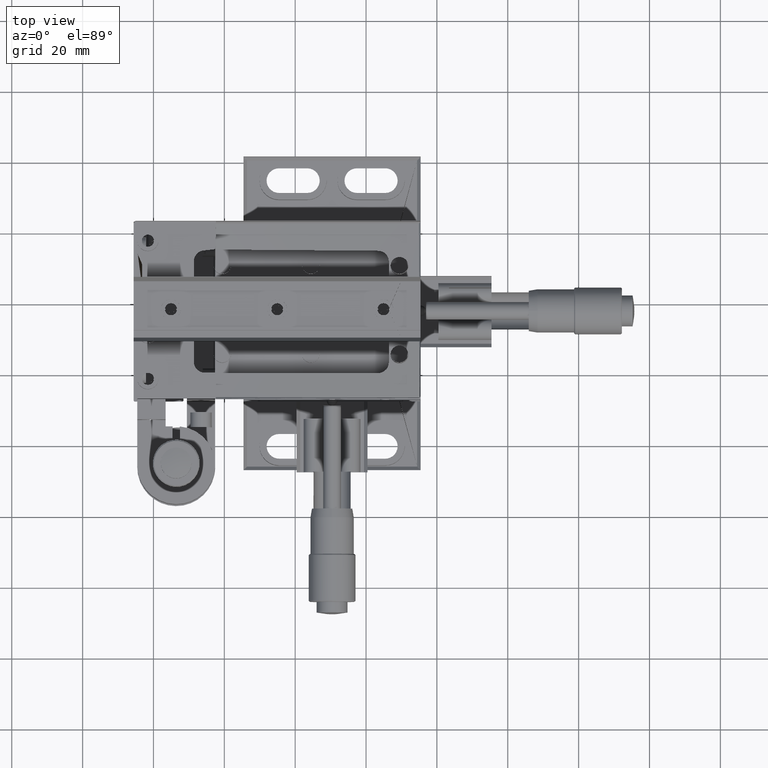
[diagram: clean part render]
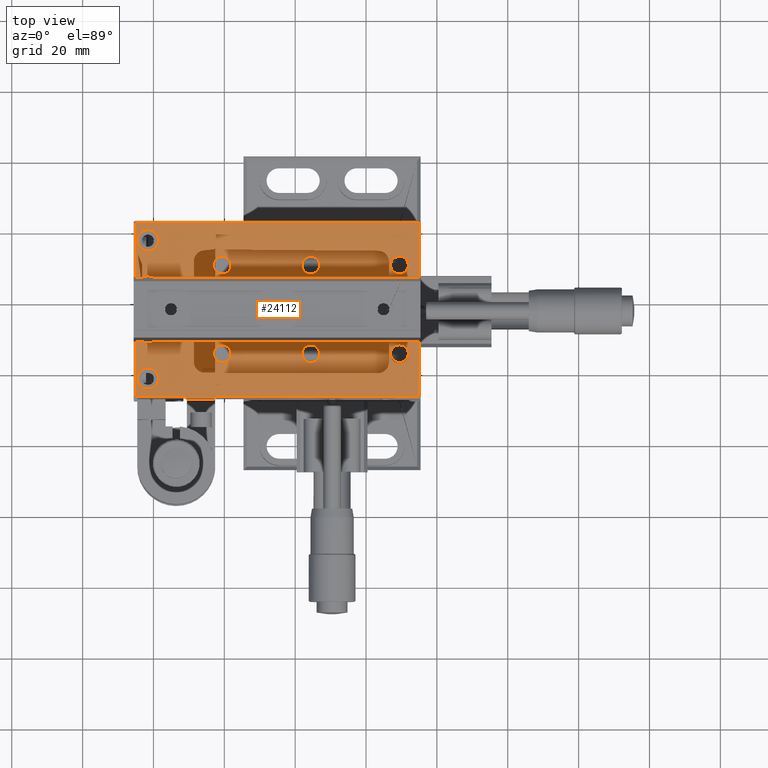
[diagram: same view with one face highlighted and labeled with its STEP entity id]
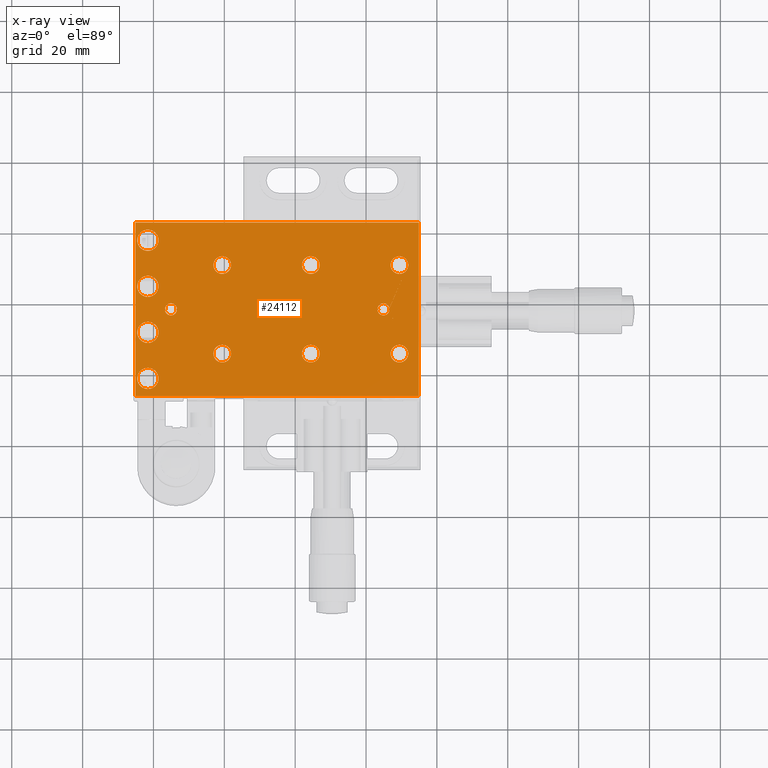
[diagram: x-ray of the same camera — body ghosted, the highlighted face saturated]
A machine part, top view. The second image highlights one B-rep face of the part: STEP entity #24112.
The next image is the same camera in x-ray: the body ghosted, the highlighted face saturated — about 0% of this face is hidden behind the body in this view.
In plain terms, the highlighted face is a freeform B-spline surface patch.
Its self-contained STEP definition (entity closure, byte-faithful):
#107 = CARTESIAN_POINT ( 'NONE',  ( 23.88291017849283548, -3.867009865607244024, 44.82274179201691311 ) ) ;
#130 = VERTEX_POINT ( 'NONE', #20915 ) ;
#266 =( BOUNDED_CURVE ( )  B_SPLINE_CURVE ( 3, ( #37529, #20355, #42080, #28506 ),
 .UNSPECIFIED., .F., .F. ) 
 B_SPLINE_CURVE_WITH_KNOTS ( ( 4, 4 ),
 ( 0.000000000000000000, 1.000000000000000000 ),
 .UNSPECIFIED. ) 
 CURVE ( )  GEOMETRIC_REPRESENTATION_ITEM ( )  RATIONAL_B_SPLINE_CURVE ( ( 1.000000000000000000, 0.3333333333333329818, 0.3333333333333329818, 1.000000000000000000 ) ) 
 REPRESENTATION_ITEM ( '' )  );
#267 = CARTESIAN_POINT ( 'NONE',  ( -44.58076767884040237, 4.000707165668824672, 44.82274179201690600 ) ) ;
#269 = VERTEX_POINT ( 'NONE', #38475 ) ;
#472 =( BOUNDED_CURVE ( )  B_SPLINE_CURVE ( 3, ( #27627, #40726, #40959, #23536 ),
 .UNSPECIFIED., .F., .F. ) 
 B_SPLINE_CURVE_WITH_KNOTS ( ( 4, 4 ),
 ( 0.000000000000000000, 1.000000000000000000 ),
 .UNSPECIFIED. ) 
 CURVE ( )  GEOMETRIC_REPRESENTATION_ITEM ( )  RATIONAL_B_SPLINE_CURVE ( ( 1.000000000000000000, 0.3333333333333329818, 0.3333333333333329818, 1.000000000000000000 ) ) 
 REPRESENTATION_ITEM ( '' )  );
#506 = CARTESIAN_POINT ( 'NONE',  ( 24.26625368784118564, -0.9296236695301619557, 44.82274179201689179 ) ) ;
#859 = ORIENTED_EDGE ( 'NONE', *, *, #43447, .F. ) ;
#998 = CARTESIAN_POINT ( 'NONE',  ( 24.32071083608665774, -4.090696291917244487, 44.82274179201689890 ) ) ;
#1081 = CARTESIAN_POINT ( 'NONE',  ( -34.55625675964191856, -0.8819335549521197803, 44.82274179201689179 ) ) ;
#1222 = CARTESIAN_POINT ( 'NONE',  ( -44.58076767884040237, 4.000707165668824672, 44.82274179201690600 ) ) ;
#1308 = CARTESIAN_POINT ( 'NONE',  ( -35.76065384840542549, -0.9410686272189020540, 44.82274179201690600 ) ) ;
#1547 = CARTESIAN_POINT ( 'NONE',  ( -4.864966658397127830, -4.199210024003185104, 44.82274179201689890 ) ) ;
#1807 = CARTESIAN_POINT ( 'NONE',  ( -18.08076767884040237, 10.00071742813409870, 44.82274179201690600 ) ) ;
#1814 = VERTEX_POINT ( 'NONE', #12105 ) ;
#1898 = CARTESIAN_POINT ( 'NONE',  ( -36.78076767884039100, -2.499282571865919955, 44.82274179201690600 ) ) ;
#1992 = EDGE_LOOP ( 'NONE', ( #30299, #32973 ) ) ;
#2025 = FACE_BOUND ( 'NONE', #41316, .T. ) ;
#2126 = CARTESIAN_POINT ( 'NONE',  ( -36.65042658239181605, -3.152261203977016812, 44.82274179201691311 ) ) ;
#2154 = CARTESIAN_POINT ( 'NONE',  ( -6.698086089622801609, -1.974694270349049097, 44.82274179201692021 ) ) ;
#2178 = CARTESIAN_POINT ( 'NONE',  ( 31.91923232115963316, -19.99928257186588709, 44.82274179201694864 ) ) ;
#2351 = CARTESIAN_POINT ( 'NONE',  ( -35.60527859804774664, -4.116631588779753770, 44.82274179201691311 ) ) ;
#2403 = CARTESIAN_POINT ( 'NONE',  ( 23.44423232115959621, -2.499282571865905300, 44.82274179201690600 ) ) ;
#2407 = CARTESIAN_POINT ( 'NONE',  ( -36.55576767884039668, -2.499282571865910185, 44.82274179201690600 ) ) ;
#2439 = CARTESIAN_POINT ( 'NONE',  ( -4.427789045516361988, -4.068941474200002517, 44.82274179201690600 ) ) ;
#2441 = EDGE_LOOP ( 'NONE', ( #12556, #10780 ) ) ;
#2568 = CARTESIAN_POINT ( 'NONE',  ( -33.43920429076871415, -2.947384523330911055, 44.82274179201691311 ) ) ;
#2600 = CARTESIAN_POINT ( 'NONE',  ( -4.482246193771566745, -0.9078688518141019292, 44.82274179201690600 ) ) ;
#2833 =( BOUNDED_CURVE ( )  B_SPLINE_CURVE ( 3, ( #43759, #9965, #12476, #26317 ),
 .UNSPECIFIED., .F., .F. ) 
 B_SPLINE_CURVE_WITH_KNOTS ( ( 4, 4 ),
 ( 0.000000000000000000, 1.000000000000000000 ),
 .UNSPECIFIED. ) 
 CURVE ( )  GEOMETRIC_REPRESENTATION_ITEM ( )  RATIONAL_B_SPLINE_CURVE ( ( 1.000000000000000000, 0.3333333333333329818, 0.3333333333333329818, 1.000000000000000000 ) ) 
 REPRESENTATION_ITEM ( '' )  );
#2900 =( BOUNDED_CURVE ( )  B_SPLINE_CURVE ( 3, ( #15550, #26010, #39585, #15328 ),
 .UNSPECIFIED., .F., .F. ) 
 B_SPLINE_CURVE_WITH_KNOTS ( ( 4, 4 ),
 ( 0.000000000000000000, 1.000000000000000000 ),
 .UNSPECIFIED. ) 
 CURVE ( )  GEOMETRIC_REPRESENTATION_ITEM ( )  RATIONAL_B_SPLINE_CURVE ( ( 1.000000000000000000, 0.3333333333333329818, 0.3333333333333329818, 1.000000000000000000 ) ) 
 REPRESENTATION_ITEM ( '' )  );
#2976 = CARTESIAN_POINT ( 'NONE',  ( -38.58076767884040237, 4.000707165668824672, 44.82274179201690600 ) ) ;
#3040 = CARTESIAN_POINT ( 'NONE',  ( -4.632786099866075702, -0.8576715742562989186, 44.82274179201689179 ) ) ;
#3041 = CARTESIAN_POINT ( 'NONE',  ( 25.90433374769983743, -3.893723376254200286, 44.82274179201692732 ) ) ;
#3112 = CARTESIAN_POINT ( 'NONE',  ( -44.58076767884045211, 11.00070716566880691, 44.82274179201685627 ) ) ;
#3263 = CARTESIAN_POINT ( 'NONE',  ( 25.55753203934456863, -4.074953905072984384, 44.82274179201690600 ) ) ;
#3424 = EDGE_CURVE ( 'NONE', #9113, #43766, #39234, .T. ) ;
#3495 = CARTESIAN_POINT ( 'NONE',  ( 24.81133181093028739, -4.199318845799514754, 44.82274179201691311 ) ) ;
#3630 = VERTEX_POINT ( 'NONE', #40810 ) ;
#3659 = CARTESIAN_POINT ( 'NONE',  ( 26.31367313431942279, -1.514181154073231728, 44.82274179201691311 ) ) ;
#3797 = CARTESIAN_POINT ( 'NONE',  ( -38.58076767884050184, 17.00070716566879980, 44.82274179201690600 ) ) ;
#3917 = EDGE_CURVE ( 'NONE', #33029, #21439, #43009, .T. ) ;
#3940 = CARTESIAN_POINT ( 'NONE',  ( 1.919232321159589860, 15.00071742813409692, 44.82274179201685627 ) ) ;
#3956 = CARTESIAN_POINT ( 'NONE',  ( -33.38076767884042795, -2.499282571865919955, 44.82274179201690600 ) ) ;
#4112 = CARTESIAN_POINT ( 'NONE',  ( 23.31932056073878456, -1.923934540407874039, 44.82274179201691311 ) ) ;
#4232 = EDGE_CURVE ( 'NONE', #26226, #16228, #42216, .T. ) ;
#4252 = CARTESIAN_POINT ( 'NONE',  ( -36.76584769281615905, -2.232076056545476028, 44.82274179201691311 ) ) ;
#4393 = CARTESIAN_POINT ( 'NONE',  ( 6.919232321159586974, 15.00071742813409692, 44.82274179201685627 ) ) ;
#4539 = CARTESIAN_POINT ( 'NONE',  ( -23.08076767884041303, 5.000717428134110243, 44.82274179201685627 ) ) ;
#4674 = CARTESIAN_POINT ( 'NONE',  ( 26.91923232115959763, -14.99928257186589953, 44.82274179201690600 ) ) ;
#4701 = CARTESIAN_POINT ( 'NONE',  ( -36.67218139870232108, -1.900761086603227623, 44.82274179201691311 ) ) ;
#4725 = CARTESIAN_POINT ( 'NONE',  ( 1.919232321159589860, -14.99928257186589953, 44.82274179201690600 ) ) ;
#4757 = CARTESIAN_POINT ( 'NONE',  ( -38.58076767884040237, -21.99929283433120020, 44.82274179201690600 ) ) ;
#4921 = CARTESIAN_POINT ( 'NONE',  ( -36.78076767884039100, -2.391290349272469307, 44.82274179201690600 ) ) ;
#4938 = EDGE_CURVE ( 'NONE', #1814, #15232, #36359, .T. ) ;
#5163 = ORIENTED_EDGE ( 'NONE', *, *, #35223, .F. ) ;
#5294 = CARTESIAN_POINT ( 'NONE',  ( -36.57696477681773928, -3.310502144004637159, 44.82274179201690600 ) ) ;
#5394 = ORIENTED_EDGE ( 'NONE', *, *, #4232, .F. ) ;
#5437 = CARTESIAN_POINT ( 'NONE',  ( -23.08076767884039882, 10.00071742813409870, 44.82274179201690600 ) ) ;
#5527 = CARTESIAN_POINT ( 'NONE',  ( -36.74098104944244625, -2.924240459291278071, 44.82274179201691311 ) ) ;
#5557 = CARTESIAN_POINT ( 'NONE',  ( -6.780767678840431856, -2.499282571865919955, 44.82274179201690600 ) ) ;
#5670 = CARTESIAN_POINT ( 'NONE',  ( -45.08076767884040237, -26.99928257186589775, 44.82274179201690600 ) ) ;
#5753 = CARTESIAN_POINT ( 'NONE',  ( -36.65643446197179856, -3.137593773047978374, 44.82274179201691311 ) ) ;
#5833 = CARTESIAN_POINT ( 'NONE',  ( -4.360830295778003851, -4.039865331779497026, 44.82274179201689890 ) ) ;
#6007 = CARTESIAN_POINT ( 'NONE',  ( -6.448494962559824906, -1.462960419154974101, 44.82274179201691311 ) ) ;
#6169 = VERTEX_POINT ( 'NONE', #1222 ) ;
#6279 =( BOUNDED_CURVE ( )  B_SPLINE_CURVE ( 3, ( #4674, #29151, #21462, #38433 ),
 .UNSPECIFIED., .F., .F. ) 
 B_SPLINE_CURVE_WITH_KNOTS ( ( 4, 4 ),
 ( 0.000000000000000000, 1.000000000000000000 ),
 .UNSPECIFIED. ) 
 CURVE ( )  GEOMETRIC_REPRESENTATION_ITEM ( )  RATIONAL_B_SPLINE_CURVE ( ( 1.000000000000000000, 0.3333333333333329818, 0.3333333333333329818, 1.000000000000000000 ) ) 
 REPRESENTATION_ITEM ( '' )  );
#6294 = CARTESIAN_POINT ( 'NONE',  ( -6.638981625790949082, -3.179168739126799981, 44.82274179201691311 ) ) ;
#6296 = ORIENTED_EDGE ( 'NONE', *, *, #10488, .F. ) ;
#6450 = CARTESIAN_POINT ( 'NONE',  ( -3.511108775290901818, -1.846303939756499757, 44.82274179201691311 ) ) ;
#6453 = CARTESIAN_POINT ( 'NONE',  ( 26.51064604102405653, -3.097804057122054200, 44.82274179201691311 ) ) ;
#6561 = EDGE_CURVE ( 'NONE', #16228, #26226, #26863, .T. ) ;
#6717 = EDGE_LOOP ( 'NONE', ( #36098, #11122 ) ) ;
#6798 = VERTEX_POINT ( 'NONE', #17143 ) ;
#6839 = CARTESIAN_POINT ( 'NONE',  ( 26.61923232115958626, -2.282911686472556489, 44.82274179201689890 ) ) ;
#6954 = CARTESIAN_POINT ( 'NONE',  ( -6.117089821564127838, -3.867009865557287984, 44.82274179201690600 ) ) ;
#7064 = CARTESIAN_POINT ( 'NONE',  ( 23.27766893308782059, -2.051180620407626165, 44.82274179201689890 ) ) ;
#7067 = CARTESIAN_POINT ( 'NONE',  ( -44.58076767884045211, -1.999292834331169999, 44.82274179201685627 ) ) ;
#7118 = CARTESIAN_POINT ( 'NONE',  ( 24.39472140194558492, -4.116631588779706696, 44.82274179201689179 ) ) ;
#7283 = CARTESIAN_POINT ( 'NONE',  ( 24.28093260297439215, -0.9236112386590447088, 44.82274179201691311 ) ) ;
#7501 = CARTESIAN_POINT ( 'NONE',  ( 6.919232321159579868, -14.99928257186589953, 44.82274179201690600 ) ) ;
#7512 = CARTESIAN_POINT ( 'NONE',  ( -23.08076767884039882, -14.99928257186589953, 44.82274179201690600 ) ) ;
#7552 = CARTESIAN_POINT ( 'NONE',  ( 23.52479150798703245, -3.484383989653957681, 44.82274179201689890 ) ) ;
#7643 = CARTESIAN_POINT ( 'NONE',  ( -36.20002632901946527, -1.214321356199616231, 44.82274179201689890 ) ) ;
#7697 = EDGE_CURVE ( 'NONE', #13076, #34169, #266, .T. ) ;
#7719 = CARTESIAN_POINT ( 'NONE',  ( 25.49453736244924329, -0.8993538080392884382, 44.82274179201689890 ) ) ;
#7771 = CARTESIAN_POINT ( 'NONE',  ( 23.63427110046709956, -3.618541217020807110, 44.82274179201692021 ) ) ;
#7846 = CARTESIAN_POINT ( 'NONE',  ( -44.58076767884045211, 23.00070716566880336, 44.82274179201685627 ) ) ;
#7861 = CARTESIAN_POINT ( 'NONE',  ( -36.06586910542076652, -1.104841767489220139, 44.82274179201692732 ) ) ;
#7923 = CARTESIAN_POINT ( 'NONE',  ( -18.08076767884039882, 5.000717428134110243, 44.82274179201685627 ) ) ;
#7988 = CARTESIAN_POINT ( 'NONE',  ( 24.34392727986926985, -4.099211335692989344, 44.82274179201689179 ) ) ;
#8074 = CARTESIAN_POINT ( 'NONE',  ( -33.38076767884042795, -2.499282571865919955, 44.82274179201690600 ) ) ;
#8151 = EDGE_CURVE ( 'NONE', #269, #34328, #22570, .T. ) ;
#8315 = CARTESIAN_POINT ( 'NONE',  ( -5.188668189062037861, -4.199318845797275657, 44.82274179201691311 ) ) ;
#8343 = VERTEX_POINT ( 'NONE', #36424 ) ;
#8366 =( BOUNDED_CURVE ( )  B_SPLINE_CURVE ( 3, ( #20021, #33830, #44252, #41521 ),
 .UNSPECIFIED., .F., .F. ) 
 B_SPLINE_CURVE_WITH_KNOTS ( ( 4, 4 ),
 ( 0.000000000000000000, 1.000000000000000000 ),
 .UNSPECIFIED. ) 
 CURVE ( )  GEOMETRIC_REPRESENTATION_ITEM ( )  RATIONAL_B_SPLINE_CURVE ( ( 1.000000000000000000, 0.3333333333333329818, 0.3333333333333329818, 1.000000000000000000 ) ) 
 REPRESENTATION_ITEM ( '' )  );
#8600 = CARTESIAN_POINT ( 'NONE',  ( -38.58076767884040237, 4.000707165668824672, 44.82274179201690600 ) ) ;
#8902 = CARTESIAN_POINT ( 'NONE',  ( -34.26954810007629249, -3.995479663228708844, 44.82274179201691311 ) ) ;
#8938 = CARTESIAN_POINT ( 'NONE',  ( -6.765847692816197245, -2.232076056554516796, 44.82274179201689890 ) ) ;
#8998 = CARTESIAN_POINT ( 'NONE',  ( -4.095666252299565713, -3.893723376256089441, 44.82274179201690600 ) ) ;
#9113 = VERTEX_POINT ( 'NONE', #18075 ) ;
#9126 = CARTESIAN_POINT ( 'NONE',  ( -34.40088150926776933, -4.057496516510425089, 44.82274179201690600 ) ) ;
#9205 = ORIENTED_EDGE ( 'NONE', *, *, #17536, .F. ) ;
#9351 = CARTESIAN_POINT ( 'NONE',  ( -34.65562606348292718, -4.159423141258378642, 44.82274179201691311 ) ) ;
#9476 = FACE_BOUND ( 'NONE', #2441, .T. ) ;
#9491 = CARTESIAN_POINT ( 'NONE',  ( 34.91923232115959763, -26.99928257186589775, 44.82274179201690600 ) ) ;
#9559 = EDGE_CURVE ( 'NONE', #6169, #19319, #26325, .T. ) ;
#9605 = CARTESIAN_POINT ( 'NONE',  ( -4.044445536174434253, -1.131555278096546768, 44.82274179201690600 ) ) ;
#9660 = CARTESIAN_POINT ( 'NONE',  ( -5.679289163914097216, -4.090696291915561389, 44.82274179201690600 ) ) ;
#9671 = CARTESIAN_POINT ( 'NONE',  ( -44.58076767884045211, -15.99929283433120553, 44.82274179201685627 ) ) ;
#9700 = CARTESIAN_POINT ( 'NONE',  ( 34.91923232115959763, 22.00071742813410225, 44.82274179201690600 ) ) ;
#9720 = ORIENTED_EDGE ( 'NONE', *, *, #22600, .F. ) ;
#9887 = CARTESIAN_POINT ( 'NONE',  ( -6.780767678840430079, -2.715653457316802744, 44.82274179201689179 ) ) ;
#9965 = CARTESIAN_POINT ( 'NONE',  ( -23.08076767884041303, -9.999282571865904856, 44.82274179201685627 ) ) ;
#10046 = EDGE_CURVE ( 'NONE', #8343, #24574, #2900, .T. ) ;
#10100 = EDGE_CURVE ( 'NONE', #3630, #28043, #31646, .T. ) ;
#10112 = CARTESIAN_POINT ( 'NONE',  ( -6.650426582382991114, -3.152261203984767945, 44.82274179201692021 ) ) ;
#10217 = CARTESIAN_POINT ( 'NONE',  ( 26.48889122470734137, -1.846303939752489631, 44.82274179201691311 ) ) ;
#10370 =( BOUNDED_CURVE ( )  B_SPLINE_CURVE ( 3, ( #21093, #17678, #14271, #28353 ),
 .UNSPECIFIED., .F., .F. ) 
 B_SPLINE_CURVE_WITH_KNOTS ( ( 4, 4 ),
 ( 0.000000000000000000, 1.000000000000000000 ),
 .UNSPECIFIED. ) 
 CURVE ( )  GEOMETRIC_REPRESENTATION_ITEM ( )  RATIONAL_B_SPLINE_CURVE ( ( 1.000000000000000000, 0.3333333333333329818, 0.3333333333333329818, 1.000000000000000000 ) ) 
 REPRESENTATION_ITEM ( '' )  );
#10444 = CARTESIAN_POINT ( 'NONE',  ( 23.93413089465971666, -1.104841767463744295, 44.82274179201689890 ) ) ;
#10488 = EDGE_CURVE ( 'NONE', #34169, #13076, #19975, .T. ) ;
#10621 = VERTEX_POINT ( 'NONE', #4757 ) ;
#10670 = CARTESIAN_POINT ( 'NONE',  ( 25.44374324037254453, -0.8819335549529991880, 44.82274179201691311 ) ) ;
#10780 = ORIENTED_EDGE ( 'NONE', *, *, #10100, .F. ) ;
#10951 = CARTESIAN_POINT ( 'NONE',  ( -18.08076767884040237, -14.99928257186589953, 44.82274179201690600 ) ) ;
#11031 = CARTESIAN_POINT ( 'NONE',  ( 1.919232321159589860, 10.00071742813409870, 44.82274179201690600 ) ) ;
#11111 = CARTESIAN_POINT ( 'NONE',  ( 24.19929493811509147, -0.9586998119470816482, 44.82274179201690600 ) ) ;
#11122 = ORIENTED_EDGE ( 'NONE', *, *, #20134, .F. ) ;
#11256 = CARTESIAN_POINT ( 'NONE',  ( -36.44849496253321064, -1.462960419146713154, 44.82274179201689890 ) ) ;
#11510 = CARTESIAN_POINT ( 'NONE',  ( 6.919232321159579868, -14.99928257186589953, 44.82274179201690600 ) ) ;
#11703 = CARTESIAN_POINT ( 'NONE',  ( -35.50590929420368980, -0.8391420024734630445, 44.82274179201690600 ) ) ;
#11918 = CARTESIAN_POINT ( 'NONE',  ( -34.63278609987624179, -0.8576715742563452149, 44.82274179201689179 ) ) ;
#11941 = CARTESIAN_POINT ( 'NONE',  ( -5.347813697510173547, -4.184426065221565239, 44.82274179201689890 ) ) ;
#12086 = CARTESIAN_POINT ( 'NONE',  ( -35.67928916391508665, -4.090696291915747906, 44.82274179201690600 ) ) ;
#12105 = CARTESIAN_POINT ( 'NONE',  ( -38.58076767884050184, 17.00070716566879980, 44.82274179201690600 ) ) ;
#12397 = CARTESIAN_POINT ( 'NONE',  ( -3.586316431474585453, -3.342959746084818384, 44.82274179201691311 ) ) ;
#12433 = FACE_BOUND ( 'NONE', #33684, .T. ) ;
#12476 = CARTESIAN_POINT ( 'NONE',  ( -18.08076767884039882, -9.999282571865904856, 44.82274179201685627 ) ) ;
#12528 = CARTESIAN_POINT ( 'NONE',  ( -34.36083029574800918, -4.039865331769473045, 44.82274179201690600 ) ) ;
#12556 = ORIENTED_EDGE ( 'NONE', *, *, #36135, .F. ) ;
#12643 = ORIENTED_EDGE ( 'NONE', *, *, #9559, .F. ) ;
#12747 = ORIENTED_EDGE ( 'NONE', *, *, #36597, .F. ) ;
#12750 = CARTESIAN_POINT ( 'NONE',  ( -36.63898162580778717, -3.179168739112033126, 44.82274179201691311 ) ) ;
#12844 = CARTESIAN_POINT ( 'NONE',  ( -6.656434461971813654, -3.137593773041049694, 44.82274179201691311 ) ) ;
#13000 = CARTESIAN_POINT ( 'NONE',  ( -6.575218926194851932, -1.655605397647071042, 44.82274179201691311 ) ) ;
#13076 = VERTEX_POINT ( 'NONE', #35576 ) ;
#13222 = CARTESIAN_POINT ( 'NONE',  ( -5.505909294209411442, -0.8391420024735086747, 44.82274179201691311 ) ) ;
#13224 = CARTESIAN_POINT ( 'NONE',  ( 26.61923232115960047, -2.607274794458349199, 44.82274179201691311 ) ) ;
#13256 =( BOUNDED_CURVE ( )  B_SPLINE_CURVE ( 3, ( #23743, #9671, #30772, #20794 ),
 .UNSPECIFIED., .F., .F. ) 
 B_SPLINE_CURVE_WITH_KNOTS ( ( 4, 4 ),
 ( 0.000000000000000000, 1.000000000000000000 ),
 .UNSPECIFIED. ) 
 CURVE ( )  GEOMETRIC_REPRESENTATION_ITEM ( )  RATIONAL_B_SPLINE_CURVE ( ( 1.000000000000000000, 0.3333333333333329818, 0.3333333333333329818, 1.000000000000000000 ) ) 
 REPRESENTATION_ITEM ( '' )  );
#13277 = CARTESIAN_POINT ( 'NONE',  ( -5.656072720127098385, -4.099211335692007019, 44.82274179201691311 ) ) ;
#13317 = FACE_BOUND ( 'NONE', #28270, .T. ) ;
#13389 = VERTEX_POINT ( 'NONE', #29352 ) ;
#13452 = CARTESIAN_POINT ( 'NONE',  ( -4.237090503095084948, -1.004831326025052984, 44.82274179201690600 ) ) ;
#13453 = CARTESIAN_POINT ( 'NONE',  ( 25.63916970422163288, -4.039865331778697666, 44.82274179201692021 ) ) ;
#13507 = CARTESIAN_POINT ( 'NONE',  ( -5.528749257818780016, -4.140893569472577695, 44.82274179201689890 ) ) ;
#13614 = CARTESIAN_POINT ( 'NONE',  ( 23.42478107383292851, -1.655605397574437587, 44.82274179201692732 ) ) ;
#13727 = CARTESIAN_POINT ( 'NONE',  ( -6.475208491962964885, -3.484383989697842576, 44.82274179201689890 ) ) ;
#13834 = CARTESIAN_POINT ( 'NONE',  ( 24.70343130070355997, -0.7993551197308782497, 44.82274179201690600 ) ) ;
#13896 = CARTESIAN_POINT ( 'NONE',  ( 23.34356553802819789, -3.137593773046378320, 44.82274179201691311 ) ) ;
#13900 = CARTESIAN_POINT ( 'NONE',  ( 6.919232321159579868, 10.00071742813409870, 44.82274179201690600 ) ) ;
#13937 = EDGE_LOOP ( 'NONE', ( #12747, #29554 ) ) ;
#14127 = EDGE_CURVE ( 'NONE', #24574, #8343, #22881, .T. ) ;
#14197 = CARTESIAN_POINT ( 'NONE',  ( -44.58076767884040237, 17.00070716566879980, 44.82274179201690600 ) ) ;
#14271 = CARTESIAN_POINT ( 'NONE',  ( -38.58076767884044500, -2.999292834331191315, 44.82274179201685627 ) ) ;
#14289 = CARTESIAN_POINT ( 'NONE',  ( 26.49489910429101158, -1.860971370687179549, 44.82274179201691311 ) ) ;
#14507 = CARTESIAN_POINT ( 'NONE',  ( 23.55150503737441525, -1.462960419176080107, 44.82274179201691311 ) ) ;
#14645 = CARTESIAN_POINT ( 'NONE',  ( -34.81372166018963554, -0.8141390785063471469, 44.82274179201690600 ) ) ;
#14863 = CARTESIAN_POINT ( 'NONE',  ( -33.79580645812717421, -1.380023926747766305, 44.82274179201692732 ) ) ;
#15080 = CARTESIAN_POINT ( 'NONE',  ( -36.72233106691211191, -2.051180620399545962, 44.82274179201690600 ) ) ;
#15232 = VERTEX_POINT ( 'NONE', #30640 ) ;
#15304 = CARTESIAN_POINT ( 'NONE',  ( -35.29656869926154172, -0.7993551197331221214, 44.82274179201689890 ) ) ;
#15328 = CARTESIAN_POINT ( 'NONE',  ( -18.08076767884040237, 10.00071742813409870, 44.82274179201690600 ) ) ;
#15463 = CARTESIAN_POINT ( 'NONE',  ( -36.47520849202696525, -3.484383989641732349, 44.82274179201689890 ) ) ;
#15550 = CARTESIAN_POINT ( 'NONE',  ( -23.08076767884039882, 10.00071742813409870, 44.82274179201690600 ) ) ;
#15773 = CARTESIAN_POINT ( 'NONE',  ( -3.480855918419691886, -3.074630603318179833, 44.82274179201691311 ) ) ;
#15809 = FACE_BOUND ( 'NONE', #6717, .T. ) ;
#15913 = CARTESIAN_POINT ( 'NONE',  ( -33.46344926805810616, -3.023870873386335312, 44.82274179201689890 ) ) ;
#16081 = EDGE_CURVE ( 'NONE', #19319, #6169, #22078, .T. ) ;
#16225 = CARTESIAN_POINT ( 'NONE',  ( -4.442467960654194137, -4.074953905072639770, 44.82274179201691311 ) ) ;
#16228 = VERTEX_POINT ( 'NONE', #7501 ) ;
#16240 = CARTESIAN_POINT ( 'NONE',  ( -44.58076767884040237, 17.00070716566879980, 44.82274179201690600 ) ) ;
#16266 = CARTESIAN_POINT ( 'NONE',  ( -45.08076767884040237, 22.00071742813410225, 44.82274179201690600 ) ) ;
#16390 = CARTESIAN_POINT ( 'NONE',  ( -3.380767678840452817, -2.282911686477059554, 44.82274179201691311 ) ) ;
#16443 =( BOUNDED_CURVE ( )  B_SPLINE_CURVE ( 3, ( #29727, #44204, #16764, #33781 ),
 .UNSPECIFIED., .F., .F. ) 
 B_SPLINE_CURVE_WITH_KNOTS ( ( 4, 4 ),
 ( 0.000000000000000000, 1.000000000000000000 ),
 .UNSPECIFIED. ) 
 CURVE ( )  GEOMETRIC_REPRESENTATION_ITEM ( )  RATIONAL_B_SPLINE_CURVE ( ( 1.000000000000000000, 0.3333333333333329818, 0.3333333333333329818, 1.000000000000000000 ) ) 
 REPRESENTATION_ITEM ( '' )  );
#16564 = CARTESIAN_POINT ( 'NONE',  ( -44.58076767884040237, 4.000707165668824672, 44.82274179201690600 ) ) ;
#16626 = B_SPLINE_CURVE_WITH_KNOTS ( 'NONE', 3,
 ( #41648, #4921, #4252, #15080, #42978, #25106, #4701, #32562, #11256, #7643, #7861, #25760, #42761, #1308, #18278, #35514, #11703, #15304, #21908, #14645, #11918, #1081, #22135, #21486, #21696, #24885, #14863, #18061, #25542, #39339, #38680, #25324, #35950, #32116, #42538, #8074 ),
 .UNSPECIFIED., .F., .F.,
 ( 4, 1, 1, 2, 2, 2, 1, 1, 1, 2, 2, 2, 1, 1, 2, 2, 2, 1, 1, 1, 2, 2, 4 ),
 ( 0.000000000000000000, 0.06249999999998648303, 0.09374999999997933597, 0.1093749999999762135, 0.1249999999999730771, 0.2499999999999489297, 0.3124999999999354960, 0.3437499999999288902, 0.3593749999999255595, 0.3671874999999255595, 0.3749999999999256151, 0.4999999999999487077, 0.5624999999999602540, 0.5937499999999660272, 0.6093749999999689138, 0.6249999999999716893, 0.7499999999999705791, 0.8124999999999699130, 0.8437499999999705791, 0.8593749999999718003, 0.8671874999999723554, 0.8749999999999727995, 1.000000000000000000 ),
 .UNSPECIFIED. ) ;
#16675 = CARTESIAN_POINT ( 'NONE',  ( -6.740981049442472006, -2.924240459401863390, 44.82274179201690600 ) ) ;
#16764 = CARTESIAN_POINT ( 'NONE',  ( 26.91923232115958697, 5.000717428134125342, 44.82274179201694864 ) ) ;
#16846 = CARTESIAN_POINT ( 'NONE',  ( -6.065869105397863059, -1.104841767482315662, 44.82274179201690600 ) ) ;
#16847 = CARTESIAN_POINT ( 'NONE',  ( 25.73045189987153947, -3.995479663244565938, 44.82274179201689179 ) ) ;
#16919 = CARTESIAN_POINT ( 'NONE',  ( -38.58076767884050184, 17.00070716566879980, 44.82274179201690600 ) ) ;
#17024 = CARTESIAN_POINT ( 'NONE',  ( -38.58076767884040237, 4.000707165668824672, 44.82274179201690600 ) ) ;
#17077 = CARTESIAN_POINT ( 'NONE',  ( 25.34437393653417914, -4.159423141258345780, 44.82274179201690600 ) ) ;
#17143 = CARTESIAN_POINT ( 'NONE',  ( -44.58076767884040237, -21.99929283433120020, 44.82274179201690600 ) ) ;
#17302 = CARTESIAN_POINT ( 'NONE',  ( -3.686326865667458375, -1.514181154102193672, 44.82274179201690600 ) ) ;
#17519 = CARTESIAN_POINT ( 'NONE',  ( 23.37864955740375450, -3.219219951098979848, 44.82274179201691311 ) ) ;
#17530 = ORIENTED_EDGE ( 'NONE', *, *, #20620, .F. ) ;
#17536 = EDGE_CURVE ( 'NONE', #21439, #130, #35477, .T. ) ;
#17678 = CARTESIAN_POINT ( 'NONE',  ( -44.58076767884045211, -2.999292834331191315, 44.82274179201685627 ) ) ;
#17921 = CARTESIAN_POINT ( 'NONE',  ( 23.79997367102646777, -1.214321356185111167, 44.82274179201691311 ) ) ;
#17975 = CARTESIAN_POINT ( 'NONE',  ( 24.07555514544454311, -3.993733817709745448, 44.82274179201691311 ) ) ;
#18022 = EDGE_LOOP ( 'NONE', ( #5163, #9720 ) ) ;
#18050 = CARTESIAN_POINT ( 'NONE',  ( -38.58076767884050184, 23.00070716566880336, 44.82274179201685627 ) ) ;
#18061 = CARTESIAN_POINT ( 'NONE',  ( -33.68632686563153555, -1.514181154142166585, 44.82274179201689890 ) ) ;
#18075 = CARTESIAN_POINT ( 'NONE',  ( 26.39423232115959905, -2.499282571865905300, 44.82274179201690600 ) ) ;
#18150 = VERTEX_POINT ( 'NONE', #10951 ) ;
#18271 = ORIENTED_EDGE ( 'NONE', *, *, #20329, .F. ) ;
#18278 = CARTESIAN_POINT ( 'NONE',  ( -35.73374631216982067, -0.9296236695336146383, 44.82274179201691311 ) ) ;
#18508 = ORIENTED_EDGE ( 'NONE', *, *, #26906, .F. ) ;
#18754 = CARTESIAN_POINT ( 'NONE',  ( -3.489353958979295456, -3.097804057125650878, 44.82274179201690600 ) ) ;
#19110 = CARTESIAN_POINT ( 'NONE',  ( 6.919232321159579868, -14.99928257186589953, 44.82274179201690600 ) ) ;
#19124 = CARTESIAN_POINT ( 'NONE',  ( -35.65607272012697138, -4.099211335693043523, 44.82274179201689890 ) ) ;
#19319 = VERTEX_POINT ( 'NONE', #8600 ) ;
#19348 = CARTESIAN_POINT ( 'NONE',  ( -34.86496665839812437, -4.199210023998700692, 44.82274179201690600 ) ) ;
#19702 = FACE_BOUND ( 'NONE', #43836, .T. ) ;
#19800 = CARTESIAN_POINT ( 'NONE',  ( -35.18866818906185046, -4.199318845799515643, 44.82274179201691311 ) ) ;
#19830 = CARTESIAN_POINT ( 'NONE',  ( -4.556256759635477493, -0.8819335549520497253, 44.82274179201691311 ) ) ;
#19975 =( BOUNDED_CURVE ( )  B_SPLINE_CURVE ( 3, ( #38822, #3940, #4393, #13900 ),
 .UNSPECIFIED., .F., .F. ) 
 B_SPLINE_CURVE_WITH_KNOTS ( ( 4, 4 ),
 ( 0.000000000000000000, 1.000000000000000000 ),
 .UNSPECIFIED. ) 
 CURVE ( )  GEOMETRIC_REPRESENTATION_ITEM ( )  RATIONAL_B_SPLINE_CURVE ( ( 1.000000000000000000, 0.3333333333333329818, 0.3333333333333329818, 1.000000000000000000 ) ) 
 REPRESENTATION_ITEM ( '' )  );
#19994 = ORIENTED_EDGE ( 'NONE', *, *, #6561, .F. ) ;
#20021 = CARTESIAN_POINT ( 'NONE',  ( -38.58076767884040237, -8.999292834331178881, 44.82274179201690600 ) ) ;
#20118 = CARTESIAN_POINT ( 'NONE',  ( -6.780767678840431856, -2.499282571865919955, 44.82274179201690600 ) ) ;
#20134 = EDGE_CURVE ( 'NONE', #18150, #22087, #30562, .T. ) ;
#20148 = CARTESIAN_POINT ( 'NONE',  ( 34.91923232115959763, -26.99928257186589775, 44.82274179201690600 ) ) ;
#20187 = CARTESIAN_POINT ( 'NONE',  ( -38.58076767884044500, -27.99929283433119309, 44.82274179201685627 ) ) ;
#20279 = CARTESIAN_POINT ( 'NONE',  ( 26.41368356849881849, -3.342959746114315678, 44.82274179201690600 ) ) ;
#20301 = CARTESIAN_POINT ( 'NONE',  ( 26.91923232115959763, -14.99928257186589953, 44.82274179201690600 ) ) ;
#20329 = EDGE_CURVE ( 'NONE', #10621, #6798, #27737, .T. ) ;
#20355 = CARTESIAN_POINT ( 'NONE',  ( 6.919232321159586974, 5.000717428134110243, 44.82274179201685627 ) ) ;
#20620 = EDGE_CURVE ( 'NONE', #15232, #1814, #27653, .T. ) ;
#20794 = CARTESIAN_POINT ( 'NONE',  ( -38.58076767884040237, -21.99929283433120020, 44.82274179201690600 ) ) ;
#20915 = CARTESIAN_POINT ( 'NONE',  ( 34.91923232115959763, 22.00071742813410225, 44.82274179201690600 ) ) ;
#21093 = CARTESIAN_POINT ( 'NONE',  ( -44.58076767884040237, -8.999292834331178881, 44.82274179201690600 ) ) ;
#21112 = CARTESIAN_POINT ( 'NONE',  ( 25.51775380623114131, -0.9078688518144442110, 44.82274179201690600 ) ) ;
#21439 = VERTEX_POINT ( 'NONE', #20148 ) ;
#21462 = CARTESIAN_POINT ( 'NONE',  ( 31.91923232115963316, -9.999282571865904856, 44.82274179201694864 ) ) ;
#21486 = CARTESIAN_POINT ( 'NONE',  ( -34.48224619377086952, -0.9078688518152262521, 44.82274179201690600 ) ) ;
#21503 = CARTESIAN_POINT ( 'NONE',  ( 34.91923232115959763, -26.99928257186589775, 44.82274179201690600 ) ) ;
#21559 = CARTESIAN_POINT ( 'NONE',  ( 25.76290949688414500, -1.004831326022449733, 44.82274179201691311 ) ) ;
#21610 = CARTESIAN_POINT ( 'NONE',  ( 25.13503334161747560, -4.199210023998700692, 44.82274179201690600 ) ) ;
#21696 = CARTESIAN_POINT ( 'NONE',  ( -34.23709050309839341, -1.004831326016979220, 44.82274179201691311 ) ) ;
#21802 = CARTESIAN_POINT ( 'NONE',  ( -45.08076767884040237, 22.00071742813410225, 44.82274179201690600 ) ) ;
#21908 = CARTESIAN_POINT ( 'NONE',  ( -34.97286716862953426, -0.7992462979323067263, 44.82274179201691311 ) ) ;
#22078 =( BOUNDED_CURVE ( )  B_SPLINE_CURVE ( 3, ( #17024, #27700, #7067, #16564 ),
 .UNSPECIFIED., .F., .F. ) 
 B_SPLINE_CURVE_WITH_KNOTS ( ( 4, 4 ),
 ( 0.000000000000000000, 1.000000000000000000 ),
 .UNSPECIFIED. ) 
 CURVE ( )  GEOMETRIC_REPRESENTATION_ITEM ( )  RATIONAL_B_SPLINE_CURVE ( ( 1.000000000000000000, 0.3333333333333329818, 0.3333333333333329818, 1.000000000000000000 ) ) 
 REPRESENTATION_ITEM ( '' )  );
#22087 = VERTEX_POINT ( 'NONE', #31628 ) ;
#22135 = CARTESIAN_POINT ( 'NONE',  ( -34.50546263755873611, -0.8993538080388404632, 44.82274179201692021 ) ) ;
#22157 = CARTESIAN_POINT ( 'NONE',  ( -3.395687664864696753, -2.766489087154024862, 44.82274179201691311 ) ) ;
#22515 = CARTESIAN_POINT ( 'NONE',  ( -35.92444485454084457, -3.993733817722279866, 44.82274179201689890 ) ) ;
#22570 = B_SPLINE_CURVE_WITH_KNOTS ( 'NONE', 3,
 ( #3956, #32947, #43811, #2568, #15913, #43591, #36528, #36312, #39950, #39727, #29565, #8902, #12528, #9126, #22964, #26368, #9351, #19348, #19800, #29333, #23186, #2351, #19124, #12086, #22515, #25920, #33169, #15463, #5294, #22738, #12750, #2126, #5753, #5527, #26819, #1898 ),
 .UNSPECIFIED., .F., .F.,
 ( 4, 1, 1, 2, 2, 2, 1, 1, 1, 2, 2, 2, 1, 1, 2, 2, 2, 1, 1, 1, 2, 2, 4 ),
 ( 0.000000000000000000, 0.06249999999999115985, 0.09374999999998724631, 0.1093749999999848455, 0.1249999999999824585, 0.2499999999999573674, 0.3124999999999434341, 0.3437499999999365508, 0.3593749999999332201, 0.3671874999999332756, 0.3749999999999333866, 0.4999999999999346079, 0.5624999999999331646, 0.5937499999999324984, 0.6093749999999340528, 0.6249999999999356071, 0.7499999999999513722, 0.8124999999999580336, 0.8437499999999613642, 0.8593749999999620304, 0.8671874999999630296, 0.8749999999999640288, 1.000000000000000000 ),
 .UNSPECIFIED. ) ;
#22600 = EDGE_CURVE ( 'NONE', #43621, #34153, #16443, .T. ) ;
#22617 = EDGE_CURVE ( 'NONE', #22087, #18150, #2833, .T. ) ;
#22738 = CARTESIAN_POINT ( 'NONE',  ( -36.62135044260238459, -3.219219951093673426, 44.82274179201690600 ) ) ;
#22774 = CARTESIAN_POINT ( 'NONE',  ( -6.722331066912179409, -2.051180620406365396, 44.82274179201690600 ) ) ;
#22870 = CARTESIAN_POINT ( 'NONE',  ( -45.08076767884040237, -26.99928257186589775, 44.82274179201690600 ) ) ;
#22881 =( BOUNDED_CURVE ( )  B_SPLINE_CURVE ( 3, ( #1807, #7923, #4539, #5437 ),
 .UNSPECIFIED., .F., .F. ) 
 B_SPLINE_CURVE_WITH_KNOTS ( ( 4, 4 ),
 ( 0.000000000000000000, 1.000000000000000000 ),
 .UNSPECIFIED. ) 
 CURVE ( )  GEOMETRIC_REPRESENTATION_ITEM ( )  RATIONAL_B_SPLINE_CURVE ( ( 1.000000000000000000, 0.3333333333333329818, 0.3333333333333329818, 1.000000000000000000 ) ) 
 REPRESENTATION_ITEM ( '' )  );
#22964 = CARTESIAN_POINT ( 'NONE',  ( -34.42778904550706898, -4.068941474196916097, 44.82274179201689890 ) ) ;
#23047 = CARTESIAN_POINT ( 'NONE',  ( -4.269548100127949830, -3.995479663245978585, 44.82274179201690600 ) ) ;
#23089 = FACE_BOUND ( 'NONE', #38867, .T. ) ;
#23186 = CARTESIAN_POINT ( 'NONE',  ( -35.52874925781837590, -4.140893569475513125, 44.82274179201690600 ) ) ;
#23215 = CARTESIAN_POINT ( 'NONE',  ( -5.296568699277625747, -0.7993551197331167923, 44.82274179201690600 ) ) ;
#23279 = VERTEX_POINT ( 'NONE', #36113 ) ;
#23502 = CARTESIAN_POINT ( 'NONE',  ( -5.924444854548236883, -3.993733817723907009, 44.82274179201689890 ) ) ;
#23536 = CARTESIAN_POINT ( 'NONE',  ( 31.91923232115960474, 10.00071742813409870, 44.82274179201690600 ) ) ;
#23671 = CARTESIAN_POINT ( 'NONE',  ( -4.972867168621786682, -0.7992462979323092798, 44.82274179201690600 ) ) ;
#23672 = CARTESIAN_POINT ( 'NONE',  ( 26.60431233513536498, -2.766489087184578644, 44.82274179201691311 ) ) ;
#23743 = CARTESIAN_POINT ( 'NONE',  ( -44.58076767884040237, -21.99929283433120020, 44.82274179201690600 ) ) ;
#23788 = CARTESIAN_POINT ( 'NONE',  ( 26.91923232115959763, -14.99928257186589953, 44.82274179201690600 ) ) ;
#23892 = EDGE_CURVE ( 'NONE', #13389, #28398, #10370, .T. ) ;
#23893 = CARTESIAN_POINT ( 'NONE',  ( 25.59911849071401235, -4.057496516515958440, 44.82274179201690600 ) ) ;
#24029 = CARTESIAN_POINT ( 'NONE',  ( -44.58076767884040237, -21.99929283433120020, 44.82274179201690600 ) ) ;
#24063 = CARTESIAN_POINT ( 'NONE',  ( 25.95555446384053155, -1.131555278129690700, 44.82274179201689890 ) ) ;
#24112 = ADVANCED_FACE ( 'NONE', ( #13317, #36656, #26951, #23089, #9476, #19702, #40737, #33078, #2025, #26505, #15809, #12433, #33517, #26276 ), #43041, .F. ) ;
#24294 = CARTESIAN_POINT ( 'NONE',  ( 23.23415230718380542, -2.232076056556210997, 44.82274179201691311 ) ) ;
#24519 = CARTESIAN_POINT ( 'NONE',  ( 23.32781860129348317, -1.900761086615263329, 44.82274179201691311 ) ) ;
#24574 = VERTEX_POINT ( 'NONE', #35199 ) ;
#24622 = ORIENTED_EDGE ( 'NONE', *, *, #41687, .F. ) ;
#24885 = CARTESIAN_POINT ( 'NONE',  ( -34.04444553621524960, -1.131555278051108893, 44.82274179201691311 ) ) ;
#25106 = CARTESIAN_POINT ( 'NONE',  ( -36.68067943926109109, -1.923934540404947047, 44.82274179201692021 ) ) ;
#25142 = ORIENTED_EDGE ( 'NONE', *, *, #3917, .F. ) ;
#25324 = CARTESIAN_POINT ( 'NONE',  ( -33.51110877528589782, -1.846303939762067081, 44.82274179201689179 ) ) ;
#25350 = CARTESIAN_POINT ( 'NONE',  ( 1.919232321159589860, -19.99928257186588709, 44.82274179201685627 ) ) ;
#25542 = CARTESIAN_POINT ( 'NONE',  ( -33.58457058084635349, -1.688062999766263284, 44.82274179201689890 ) ) ;
#25557 = CARTESIAN_POINT ( 'NONE',  ( 34.91923232115959763, 22.00071742813410225, 44.82274179201690600 ) ) ;
#25627 = CARTESIAN_POINT ( 'NONE',  ( -45.08076767884040237, -26.99928257186589775, 44.82274179201690600 ) ) ;
#25729 = CARTESIAN_POINT ( 'NONE',  ( -6.780767678840432744, -2.391290349277630511, 44.82274179201691311 ) ) ;
#25760 = CARTESIAN_POINT ( 'NONE',  ( -35.89198725758249964, -1.003085480495943926, 44.82274179201691311 ) ) ;
#25908 = CARTESIAN_POINT ( 'NONE',  ( 6.919232321159586974, -9.999282571865904856, 44.82274179201685627 ) ) ;
#25920 = CARTESIAN_POINT ( 'NONE',  ( -36.11708982149090730, -3.867009865621384712, 44.82274179201691311 ) ) ;
#26010 = CARTESIAN_POINT ( 'NONE',  ( -23.08076767884041303, 15.00071742813409692, 44.82274179201685627 ) ) ;
#26226 = VERTEX_POINT ( 'NONE', #43954 ) ;
#26239 = CARTESIAN_POINT ( 'NONE',  ( -3.713040395102166435, -3.535604724569463730, 44.82274179201689890 ) ) ;
#26276 = FACE_OUTER_BOUND ( 'NONE', #42275, .T. ) ;
#26317 = CARTESIAN_POINT ( 'NONE',  ( -18.08076767884040237, -14.99928257186589953, 44.82274179201690600 ) ) ;
#26325 =( BOUNDED_CURVE ( )  B_SPLINE_CURVE ( 3, ( #267, #34019, #34925, #2976 ),
 .UNSPECIFIED., .F., .F. ) 
 B_SPLINE_CURVE_WITH_KNOTS ( ( 4, 4 ),
 ( 0.000000000000000000, 1.000000000000000000 ),
 .UNSPECIFIED. ) 
 CURVE ( )  GEOMETRIC_REPRESENTATION_ITEM ( )  RATIONAL_B_SPLINE_CURVE ( ( 1.000000000000000000, 0.3333333333333329818, 0.3333333333333329818, 1.000000000000000000 ) ) 
 REPRESENTATION_ITEM ( '' )  );
#26368 = CARTESIAN_POINT ( 'NONE',  ( -34.44246796065449701, -4.074953905073050997, 44.82274179201689890 ) ) ;
#26446 = B_SPLINE_CURVE_WITH_KNOTS ( 'NONE', 1,
 ( #30456, #44481 ),
 .UNSPECIFIED., .F., .F.,
 ( 2, 2 ),
 ( 0.000000000000000000, 1.000000000000000000 ),
 .UNSPECIFIED. ) ;
#26469 = EDGE_LOOP ( 'NONE', ( #12643, #27854 ) ) ;
#26505 = FACE_BOUND ( 'NONE', #1992, .T. ) ;
#26648 = CARTESIAN_POINT ( 'NONE',  ( 26.91923232115958697, -19.99928257186588709, 44.82274179201694864 ) ) ;
#26819 = CARTESIAN_POINT ( 'NONE',  ( -36.78076767884039100, -2.715653457206211652, 44.82274179201691311 ) ) ;
#26843 = ORIENTED_EDGE ( 'NONE', *, *, #38341, .F. ) ;
#26863 =( BOUNDED_CURVE ( )  B_SPLINE_CURVE ( 3, ( #11510, #28323, #25350, #4725 ),
 .UNSPECIFIED., .F., .F. ) 
 B_SPLINE_CURVE_WITH_KNOTS ( ( 4, 4 ),
 ( 0.000000000000000000, 1.000000000000000000 ),
 .UNSPECIFIED. ) 
 CURVE ( )  GEOMETRIC_REPRESENTATION_ITEM ( )  RATIONAL_B_SPLINE_CURVE ( ( 1.000000000000000000, 0.3333333333333329818, 0.3333333333333329818, 1.000000000000000000 ) ) 
 REPRESENTATION_ITEM ( '' )  );
#26906 = EDGE_CURVE ( 'NONE', #30535, #33029, #28881, .T. ) ;
#26951 = FACE_BOUND ( 'NONE', #29425, .T. ) ;
#27077 = CARTESIAN_POINT ( 'NONE',  ( -3.420554308238413999, -2.074324684391996243, 44.82274179201689890 ) ) ;
#27210 = VERTEX_POINT ( 'NONE', #23788 ) ;
#27300 = CARTESIAN_POINT ( 'NONE',  ( -3.540184915084404249, -1.779345192643460027, 44.82274179201691311 ) ) ;
#27301 = CARTESIAN_POINT ( 'NONE',  ( 26.61923232115959337, -2.499282571865919955, 44.82274179201690600 ) ) ;
#27468 = CARTESIAN_POINT ( 'NONE',  ( 25.36721390014635347, -0.8576715742577661894, 44.82274179201691311 ) ) ;
#27526 = CARTESIAN_POINT ( 'NONE',  ( -4.505462637555256222, -0.8993538080387539768, 44.82274179201690600 ) ) ;
#27627 = CARTESIAN_POINT ( 'NONE',  ( 26.91923232115959763, 10.00071742813409870, 44.82274179201690600 ) ) ;
#27653 =( BOUNDED_CURVE ( )  B_SPLINE_CURVE ( 3, ( #14197, #7846, #18050, #3797 ),
 .UNSPECIFIED., .F., .F. ) 
 B_SPLINE_CURVE_WITH_KNOTS ( ( 4, 4 ),
 ( 0.000000000000000000, 1.000000000000000000 ),
 .UNSPECIFIED. ) 
 CURVE ( )  GEOMETRIC_REPRESENTATION_ITEM ( )  RATIONAL_B_SPLINE_CURVE ( ( 1.000000000000000000, 0.3333333333333329818, 0.3333333333333329818, 1.000000000000000000 ) ) 
 REPRESENTATION_ITEM ( '' )  );
#27698 = CARTESIAN_POINT ( 'NONE',  ( 24.23934615161564921, -0.9410686272122534834, 44.82274179201691311 ) ) ;
#27700 = CARTESIAN_POINT ( 'NONE',  ( -38.58076767884044500, -1.999292834331169999, 44.82274179201685627 ) ) ;
#27737 =( BOUNDED_CURVE ( )  B_SPLINE_CURVE ( 3, ( #37580, #20187, #41460, #24029 ),
 .UNSPECIFIED., .F., .F. ) 
 B_SPLINE_CURVE_WITH_KNOTS ( ( 4, 4 ),
 ( 0.000000000000000000, 1.000000000000000000 ),
 .UNSPECIFIED. ) 
 CURVE ( )  GEOMETRIC_REPRESENTATION_ITEM ( )  RATIONAL_B_SPLINE_CURVE ( ( 1.000000000000000000, 0.3333333333333329818, 0.3333333333333329818, 1.000000000000000000 ) ) 
 REPRESENTATION_ITEM ( '' )  );
#27749 = CARTESIAN_POINT ( 'NONE',  ( -3.505100895709072795, -1.860971370686898219, 44.82274179201690600 ) ) ;
#27750 = CARTESIAN_POINT ( 'NONE',  ( 23.21923232115958413, -2.499282571865919067, 44.82274179201690600 ) ) ;
#27854 = ORIENTED_EDGE ( 'NONE', *, *, #16081, .F. ) ;
#27924 = CARTESIAN_POINT ( 'NONE',  ( 23.30191391037717707, -1.974694270349843572, 44.82274179201690600 ) ) ;
#28043 = VERTEX_POINT ( 'NONE', #32994 ) ;
#28205 = CARTESIAN_POINT ( 'NONE',  ( 23.21923232115958413, -2.715653457230490897, 44.82274179201690600 ) ) ;
#28270 = EDGE_LOOP ( 'NONE', ( #17530, #35407 ) ) ;
#28323 = CARTESIAN_POINT ( 'NONE',  ( 6.919232321159586974, -19.99928257186588709, 44.82274179201685627 ) ) ;
#28353 = CARTESIAN_POINT ( 'NONE',  ( -38.58076767884040237, -8.999292834331178881, 44.82274179201690600 ) ) ;
#28364 = EDGE_CURVE ( 'NONE', #28398, #13389, #8366, .T. ) ;
#28376 = CARTESIAN_POINT ( 'NONE',  ( 24.10801274247787163, -1.003085480476852087, 44.82274179201691311 ) ) ;
#28398 = VERTEX_POINT ( 'NONE', #36973 ) ;
#28506 = CARTESIAN_POINT ( 'NONE',  ( 1.919232321159589860, 10.00071742813409870, 44.82274179201690600 ) ) ;
#28881 = B_SPLINE_CURVE_WITH_KNOTS ( 'NONE', 1,
 ( #32196, #25627 ),
 .UNSPECIFIED., .F., .F.,
 ( 2, 2 ),
 ( -1.000000000000000000, 0.000000000000000000 ),
 .UNSPECIFIED. ) ;
#29151 = CARTESIAN_POINT ( 'NONE',  ( 26.91923232115958697, -9.999282571865904856, 44.82274179201694864 ) ) ;
#29214 = EDGE_CURVE ( 'NONE', #130, #30535, #26446, .T. ) ;
#29333 = CARTESIAN_POINT ( 'NONE',  ( -35.34781369750967173, -4.184426065225488323, 44.82274179201691311 ) ) ;
#29352 = CARTESIAN_POINT ( 'NONE',  ( -44.58076767884040237, -8.999292834331178881, 44.82274179201690600 ) ) ;
#29425 = EDGE_LOOP ( 'NONE', ( #36192, #43001 ) ) ;
#29554 = ORIENTED_EDGE ( 'NONE', *, *, #34267, .F. ) ;
#29565 = CARTESIAN_POINT ( 'NONE',  ( -34.09566625223056491, -3.893723376233036770, 44.82274179201691311 ) ) ;
#29727 = CARTESIAN_POINT ( 'NONE',  ( 31.91923232115960474, 10.00071742813409870, 44.82274179201690600 ) ) ;
#29816 = CARTESIAN_POINT ( 'NONE',  ( -6.680679439261194119, -1.923934540407446825, 44.82274179201692021 ) ) ;
#29874 = CARTESIAN_POINT ( 'NONE',  ( -3.380767678840452373, -2.607274794440894272, 44.82274179201691311 ) ) ;
#30098 = CARTESIAN_POINT ( 'NONE',  ( -3.380767678840452373, -2.499282571865919511, 44.82274179201691311 ) ) ;
#30225 = EDGE_LOOP ( 'NONE', ( #859, #30342 ) ) ;
#30260 = CARTESIAN_POINT ( 'NONE',  ( -3.795806458147751083, -1.380023926724867733, 44.82274179201691311 ) ) ;
#30299 = ORIENTED_EDGE ( 'NONE', *, *, #10046, .F. ) ;
#30342 = ORIENTED_EDGE ( 'NONE', *, *, #8151, .F. ) ;
#30456 = CARTESIAN_POINT ( 'NONE',  ( 34.91923232115959763, 22.00071742813410225, 44.82274179201690600 ) ) ;
#30478 = CARTESIAN_POINT ( 'NONE',  ( -5.760653848399607035, -0.9410686272171793210, 44.82274179201690600 ) ) ;
#30535 = VERTEX_POINT ( 'NONE', #21802 ) ;
#30562 =( BOUNDED_CURVE ( )  B_SPLINE_CURVE ( 3, ( #35612, #32206, #39441, #7512 ),
 .UNSPECIFIED., .F., .F. ) 
 B_SPLINE_CURVE_WITH_KNOTS ( ( 4, 4 ),
 ( 0.000000000000000000, 1.000000000000000000 ),
 .UNSPECIFIED. ) 
 CURVE ( )  GEOMETRIC_REPRESENTATION_ITEM ( )  RATIONAL_B_SPLINE_CURVE ( ( 1.000000000000000000, 0.3333333333333329818, 0.3333333333333329818, 1.000000000000000000 ) ) 
 REPRESENTATION_ITEM ( '' )  );
#30640 = CARTESIAN_POINT ( 'NONE',  ( -44.58076767884040237, 17.00070716566879980, 44.82274179201690600 ) ) ;
#30705 = CARTESIAN_POINT ( 'NONE',  ( -5.733746312166892345, -0.9296236695327727562, 44.82274179201689179 ) ) ;
#30706 = CARTESIAN_POINT ( 'NONE',  ( 26.51914408158033964, -3.074630603326427458, 44.82274179201691311 ) ) ;
#30760 = CARTESIAN_POINT ( 'NONE',  ( -6.576964776769760768, -3.310502144046706174, 44.82274179201691311 ) ) ;
#30772 = CARTESIAN_POINT ( 'NONE',  ( -38.58076767884044500, -15.99929283433120553, 44.82274179201685627 ) ) ;
#30935 = CARTESIAN_POINT ( 'NONE',  ( 26.53655073194195424, -3.023870873386360181, 44.82274179201690600 ) ) ;
#31098 = CARTESIAN_POINT ( 'NONE',  ( 26.41542941911690789, -1.688062999714553758, 44.82274179201691311 ) ) ;
#31326 = CARTESIAN_POINT ( 'NONE',  ( 26.45981508490990208, -1.779345192630787276, 44.82274179201690600 ) ) ;
#31466 = CARTESIAN_POINT ( 'NONE',  ( 26.91923232115959763, 10.00071742813409870, 44.82274179201690600 ) ) ;
#31628 = CARTESIAN_POINT ( 'NONE',  ( -23.08076767884039882, -14.99928257186589953, 44.82274179201690600 ) ) ;
#31646 = B_SPLINE_CURVE_WITH_KNOTS ( 'NONE', 3,
 ( #30098, #29874, #22157, #40260, #33035, #15773, #18754, #12397, #26239, #40039, #8998, #23047, #5833, #33476, #2439, #16225, #39362, #1547, #8315, #11941, #13507, #37744, #13277, #9660, #23502, #6954, #34148, #13727, #30760, #37291, #6294, #10112, #12844, #16675, #9887, #20118 ),
 .UNSPECIFIED., .F., .F.,
 ( 4, 1, 1, 2, 2, 2, 1, 1, 1, 2, 2, 2, 1, 1, 2, 2, 2, 1, 1, 1, 2, 2, 4 ),
 ( 0.000000000000000000, 0.06250000000000202616, 0.09375000000000315026, 0.1093750000000038719, 0.1250000000000045797, 0.2500000000000105471, 0.3125000000000133782, 0.3437500000000147105, 0.3593750000000154876, 0.3671875000000156541, 0.3750000000000158762, 0.5000000000000142109, 0.5625000000000136557, 0.5937500000000131006, 0.6093750000000127676, 0.6250000000000123235, 0.7500000000000086597, 0.8125000000000066613, 0.8437500000000056621, 0.8593750000000052180, 0.8671875000000048850, 0.8750000000000045519, 1.000000000000000000 ),
 .UNSPECIFIED. ) ;
#32116 = CARTESIAN_POINT ( 'NONE',  ( -33.42055430823839401, -2.074324684445081779, 44.82274179201691311 ) ) ;
#32196 = CARTESIAN_POINT ( 'NONE',  ( -45.08076767884040237, 22.00071742813410225, 44.82274179201690600 ) ) ;
#32206 = CARTESIAN_POINT ( 'NONE',  ( -18.08076767884039882, -19.99928257186588709, 44.82274179201685627 ) ) ;
#32562 = CARTESIAN_POINT ( 'NONE',  ( -36.57521892619955395, -1.655605397670161683, 44.82274179201690600 ) ) ;
#32947 = CARTESIAN_POINT ( 'NONE',  ( -33.38076767884044216, -2.607274794458306566, 44.82274179201691311 ) ) ;
#32973 = ORIENTED_EDGE ( 'NONE', *, *, #14127, .F. ) ;
#32994 = CARTESIAN_POINT ( 'NONE',  ( -6.555767678840418888, -2.499282571865899971, 44.82274179201690600 ) ) ;
#33029 = VERTEX_POINT ( 'NONE', #33466 ) ;
#33035 = CARTESIAN_POINT ( 'NONE',  ( -3.463449268058084396, -3.023870873371578671, 44.82274179201690600 ) ) ;
#33078 = FACE_BOUND ( 'NONE', #18022, .T. ) ;
#33169 = CARTESIAN_POINT ( 'NONE',  ( -36.36572889954085497, -3.618541217013854894, 44.82274179201690600 ) ) ;
#33466 = CARTESIAN_POINT ( 'NONE',  ( -45.08076767884040237, -26.99928257186589775, 44.82274179201690600 ) ) ;
#33476 = CARTESIAN_POINT ( 'NONE',  ( -4.400881509285706095, -4.057496516516411411, 44.82274179201690600 ) ) ;
#33517 = FACE_BOUND ( 'NONE', #13937, .T. ) ;
#33642 = CARTESIAN_POINT ( 'NONE',  ( -6.672181398703020960, -1.900761086606221006, 44.82274179201690600 ) ) ;
#33684 = EDGE_LOOP ( 'NONE', ( #5394, #19994 ) ) ;
#33781 = CARTESIAN_POINT ( 'NONE',  ( 26.91923232115959763, 10.00071742813409870, 44.82274179201690600 ) ) ;
#33830 = CARTESIAN_POINT ( 'NONE',  ( -38.58076767884044500, -14.99929283433121618, 44.82274179201685627 ) ) ;
#33863 = CARTESIAN_POINT ( 'NONE',  ( -3.380767678840452373, -2.499282571865918179, 44.82274179201691311 ) ) ;
#33889 = CARTESIAN_POINT ( 'NONE',  ( 31.91923232115960474, -14.99928257186589953, 44.82274179201690600 ) ) ;
#34019 = CARTESIAN_POINT ( 'NONE',  ( -44.58076767884045211, 10.00070716566880158, 44.82274179201685627 ) ) ;
#34086 = CARTESIAN_POINT ( 'NONE',  ( -5.891987257565364899, -1.003085480490792269, 44.82274179201691311 ) ) ;
#34087 = CARTESIAN_POINT ( 'NONE',  ( 26.03849097131572066, -3.784243787538835502, 44.82274179201689890 ) ) ;
#34148 = CARTESIAN_POINT ( 'NONE',  ( -6.365728899504293992, -3.618541217045926572, 44.82274179201691311 ) ) ;
#34153 = VERTEX_POINT ( 'NONE', #31466 ) ;
#34169 = VERTEX_POINT ( 'NONE', #11031 ) ;
#34267 = EDGE_CURVE ( 'NONE', #23279, #27210, #38275, .T. ) ;
#34314 = CARTESIAN_POINT ( 'NONE',  ( 25.57221095448342041, -4.068941474199794683, 44.82274179201691311 ) ) ;
#34328 = VERTEX_POINT ( 'NONE', #2407 ) ;
#34483 = CARTESIAN_POINT ( 'NONE',  ( 26.61923232115959337, -2.499282571865919955, 44.82274179201690600 ) ) ;
#34537 = CARTESIAN_POINT ( 'NONE',  ( -4.813721660175929173, -0.8141390785063368218, 44.82274179201691311 ) ) ;
#34700 = CARTESIAN_POINT ( 'NONE',  ( 25.18627833984058029, -0.8141390785082873727, 44.82274179201690600 ) ) ;
#34762 = CARTESIAN_POINT ( 'NONE',  ( 23.42303522319275899, -3.310502144013781844, 44.82274179201689890 ) ) ;
#34925 = CARTESIAN_POINT ( 'NONE',  ( -38.58076767884044500, 10.00070716566880158, 44.82274179201685627 ) ) ;
#34986 = CARTESIAN_POINT ( 'NONE',  ( 24.47125074217129992, -4.140893569475479374, 44.82274179201691311 ) ) ;
#35154 = CARTESIAN_POINT ( 'NONE',  ( 23.21923232115958413, -2.499282571865919511, 44.82274179201690600 ) ) ;
#35199 = CARTESIAN_POINT ( 'NONE',  ( -18.08076767884040237, 10.00071742813409870, 44.82274179201690600 ) ) ;
#35223 = EDGE_CURVE ( 'NONE', #34153, #43621, #472, .T. ) ;
#35375 = CARTESIAN_POINT ( 'NONE',  ( 26.20419354184473448, -1.380023926708330739, 44.82274179201689890 ) ) ;
#35407 = ORIENTED_EDGE ( 'NONE', *, *, #4938, .F. ) ;
#35477 = B_SPLINE_CURVE_WITH_KNOTS ( 'NONE', 1,
 ( #21503, #25557 ),
 .UNSPECIFIED., .F., .F.,
 ( 2, 2 ),
 ( 0.000000000000000000, 1.000000000000000000 ),
 .UNSPECIFIED. ) ;
#35514 = CARTESIAN_POINT ( 'NONE',  ( -35.71906739702613720, -0.9236112386588131162, 44.82274179201691311 ) ) ;
#35539 = ORIENTED_EDGE ( 'NONE', *, *, #29214, .F. ) ;
#35576 = CARTESIAN_POINT ( 'NONE',  ( 6.919232321159579868, 10.00071742813409870, 44.82274179201690600 ) ) ;
#35612 = CARTESIAN_POINT ( 'NONE',  ( -18.08076767884040237, -14.99928257186589953, 44.82274179201690600 ) ) ;
#35745 = B_SPLINE_CURVE_WITH_KNOTS ( 'NONE', 3,
 ( #5557, #25729, #8938, #22774, #2154, #29816, #33642, #13000, #6007, #37007, #16846, #34086, #41554, #30478, #30705, #44506, #13222, #23215, #23671, #34537, #3040, #19830, #27526, #2600, #13452, #9605, #30260, #17302, #44733, #27300, #37453, #6450, #27749, #27077, #16390, #33863 ),
 .UNSPECIFIED., .F., .F.,
 ( 4, 1, 1, 2, 2, 2, 1, 1, 1, 2, 2, 2, 1, 1, 2, 2, 2, 1, 1, 1, 2, 2, 4 ),
 ( 0.000000000000000000, 0.06250000000000105471, 0.09375000000000170697, 0.1093750000000019151, 0.1250000000000021094, 0.2500000000000031086, 0.3125000000000034417, 0.3437500000000036082, 0.3593750000000034972, 0.3671875000000032196, 0.3750000000000028866, 0.5000000000000009992, 0.5625000000000000000, 0.5937499999999995559, 0.6093749999999996669, 0.6249999999999996669, 0.7499999999999996669, 0.8124999999999995559, 0.8437499999999995559, 0.8593749999999996669, 0.8671874999999996669, 0.8749999999999996669, 1.000000000000000000 ),
 .UNSPECIFIED. ) ;
#35950 = CARTESIAN_POINT ( 'NONE',  ( -33.50510089570902750, -1.860971370683630166, 44.82274179201689890 ) ) ;
#36098 = ORIENTED_EDGE ( 'NONE', *, *, #22617, .F. ) ;
#36113 = CARTESIAN_POINT ( 'NONE',  ( 31.91923232115960474, -14.99928257186589953, 44.82274179201690600 ) ) ;
#36135 = EDGE_CURVE ( 'NONE', #28043, #3630, #35745, .T. ) ;
#36192 = ORIENTED_EDGE ( 'NONE', *, *, #23892, .F. ) ;
#36312 = CARTESIAN_POINT ( 'NONE',  ( -33.58631643146485857, -3.342959746022305723, 44.82274179201691311 ) ) ;
#36359 =( BOUNDED_CURVE ( )  B_SPLINE_CURVE ( 3, ( #16919, #36853, #3112, #16240 ),
 .UNSPECIFIED., .F., .F. ) 
 B_SPLINE_CURVE_WITH_KNOTS ( ( 4, 4 ),
 ( 0.000000000000000000, 1.000000000000000000 ),
 .UNSPECIFIED. ) 
 CURVE ( )  GEOMETRIC_REPRESENTATION_ITEM ( )  RATIONAL_B_SPLINE_CURVE ( ( 1.000000000000000000, 0.3333333333333329818, 0.3333333333333329818, 1.000000000000000000 ) ) 
 REPRESENTATION_ITEM ( '' )  );
#36424 = CARTESIAN_POINT ( 'NONE',  ( -23.08076767884039882, 10.00071742813409870, 44.82274179201690600 ) ) ;
#36528 = CARTESIAN_POINT ( 'NONE',  ( -33.48935395898057266, -3.097804057133571209, 44.82274179201691311 ) ) ;
#36597 = EDGE_CURVE ( 'NONE', #27210, #23279, #6279, .T. ) ;
#36656 = FACE_BOUND ( 'NONE', #26469, .T. ) ;
#36853 = CARTESIAN_POINT ( 'NONE',  ( -38.58076767884050184, 11.00070716566880691, 44.82274179201685627 ) ) ;
#36973 = CARTESIAN_POINT ( 'NONE',  ( -38.58076767884040237, -8.999292834331178881, 44.82274179201690600 ) ) ;
#37007 = CARTESIAN_POINT ( 'NONE',  ( -6.200026329006447234, -1.214321356195748658, 44.82274179201690600 ) ) ;
#37291 = CARTESIAN_POINT ( 'NONE',  ( -6.621350442574398087, -3.219219951118210243, 44.82274179201690600 ) ) ;
#37453 = CARTESIAN_POINT ( 'NONE',  ( -3.522553731876639116, -1.819396404622994456, 44.82274179201691311 ) ) ;
#37454 = CARTESIAN_POINT ( 'NONE',  ( 26.56079570923133204, -2.947384523330961681, 44.82274179201689890 ) ) ;
#37486 = ORIENTED_EDGE ( 'NONE', *, *, #7697, .F. ) ;
#37529 = CARTESIAN_POINT ( 'NONE',  ( 6.919232321159579868, 10.00071742813409870, 44.82274179201690600 ) ) ;
#37580 = CARTESIAN_POINT ( 'NONE',  ( -38.58076767884040237, -21.99929283433120020, 44.82274179201690600 ) ) ;
#37680 = CARTESIAN_POINT ( 'NONE',  ( 26.28695960489828209, -3.535604724571853819, 44.82274179201690600 ) ) ;
#37744 = CARTESIAN_POINT ( 'NONE',  ( -5.605278598047982008, -4.116631588777874384, 44.82274179201691311 ) ) ;
#37856 = CARTESIAN_POINT ( 'NONE',  ( 26.57944569176165572, -2.074324684387491846, 44.82274179201691311 ) ) ;
#38081 = CARTESIAN_POINT ( 'NONE',  ( 24.49409070578499126, -0.8391420024712460402, 44.82274179201689890 ) ) ;
#38137 = CARTESIAN_POINT ( 'NONE',  ( 23.36101837419588989, -3.179168739115199038, 44.82274179201691311 ) ) ;
#38275 =( BOUNDED_CURVE ( )  B_SPLINE_CURVE ( 3, ( #33889, #2178, #26648, #20301 ),
 .UNSPECIFIED., .F., .F. ) 
 B_SPLINE_CURVE_WITH_KNOTS ( ( 4, 4 ),
 ( 0.000000000000000000, 1.000000000000000000 ),
 .UNSPECIFIED. ) 
 CURVE ( )  GEOMETRIC_REPRESENTATION_ITEM ( )  RATIONAL_B_SPLINE_CURVE ( ( 1.000000000000000000, 0.3333333333333329818, 0.3333333333333329818, 1.000000000000000000 ) ) 
 REPRESENTATION_ITEM ( '' )  );
#38341 = EDGE_CURVE ( 'NONE', #43766, #9113, #43610, .T. ) ;
#38433 = CARTESIAN_POINT ( 'NONE',  ( 31.91923232115960474, -14.99928257186589953, 44.82274179201690600 ) ) ;
#38475 = CARTESIAN_POINT ( 'NONE',  ( -33.60576767884040095, -2.499282571865910185, 44.82274179201690600 ) ) ;
#38680 = CARTESIAN_POINT ( 'NONE',  ( -33.52255373186716980, -1.819396404633551123, 44.82274179201691311 ) ) ;
#38756 = CARTESIAN_POINT ( 'NONE',  ( 25.02713283138765377, -0.7992462979334162831, 44.82274179201691311 ) ) ;
#38817 = CARTESIAN_POINT ( 'NONE',  ( 24.65218630247661480, -4.184426065225478553, 44.82274179201689179 ) ) ;
#38822 = CARTESIAN_POINT ( 'NONE',  ( 1.919232321159589860, 10.00071742813409870, 44.82274179201690600 ) ) ;
#38867 = EDGE_LOOP ( 'NONE', ( #24622, #18271 ) ) ;
#39234 = B_SPLINE_CURVE_WITH_KNOTS ( 'NONE', 3,
 ( #27301, #13224, #23672, #37454, #30935, #30706, #6453, #20279, #37680, #34087, #3041, #16847, #13453, #23893, #34314, #3263, #17077, #21610, #3495, #38817, #34986, #7118, #7988, #998, #17975, #107, #7771, #7552, #34762, #17519, #38137, #41787, #13896, #42445, #28205, #27750 ),
 .UNSPECIFIED., .F., .F.,
 ( 4, 1, 1, 2, 2, 2, 1, 1, 1, 2, 2, 2, 1, 1, 2, 2, 2, 1, 1, 1, 2, 2, 4 ),
 ( 0.000000000000000000, 0.06250000000000688338, 0.09375000000001032507, 0.1093750000000121708, 0.1250000000000140166, 0.2500000000000280886, 0.3125000000000350275, 0.3437500000000383582, 0.3593750000000391909, 0.3671875000000395795, 0.3750000000000400235, 0.5000000000000246470, 0.5625000000000169864, 0.5937500000000131006, 0.6093750000000119904, 0.6250000000000109912, 0.7500000000000083267, 0.8125000000000071054, 0.8437500000000064393, 0.8593750000000065503, 0.8671875000000062172, 0.8750000000000058842, 1.000000000000000000 ),
 .UNSPECIFIED. ) ;
#39339 = CARTESIAN_POINT ( 'NONE',  ( -33.54018491506867150, -1.779345192660966468, 44.82274179201691311 ) ) ;
#39362 = CARTESIAN_POINT ( 'NONE',  ( -4.655626063482832144, -4.159423141262830192, 44.82274179201691311 ) ) ;
#39441 = CARTESIAN_POINT ( 'NONE',  ( -23.08076767884041303, -19.99928257186588709, 44.82274179201685627 ) ) ;
#39494 = CARTESIAN_POINT ( 'NONE',  ( 1.919232321159589860, -9.999282571865904856, 44.82274179201685627 ) ) ;
#39542 = ORIENTED_EDGE ( 'NONE', *, *, #3424, .F. ) ;
#39585 = CARTESIAN_POINT ( 'NONE',  ( -18.08076767884039882, 15.00071742813409692, 44.82274179201685627 ) ) ;
#39727 = CARTESIAN_POINT ( 'NONE',  ( -33.96150902864454224, -3.784243787526776703, 44.82274179201691311 ) ) ;
#39950 = CARTESIAN_POINT ( 'NONE',  ( -33.71304039518148699, -3.535604724596211668, 44.82274179201691311 ) ) ;
#40039 = CARTESIAN_POINT ( 'NONE',  ( -3.961509028683884548, -3.784243787539863124, 44.82274179201690600 ) ) ;
#40074 = CARTESIAN_POINT ( 'NONE',  ( 34.91923232115959763, -26.99928257186589775, 44.82274179201690600 ) ) ;
#40220 = CARTESIAN_POINT ( 'NONE',  ( 31.91923232115960474, 10.00071742813409870, 44.82274179201690600 ) ) ;
#40260 = CARTESIAN_POINT ( 'NONE',  ( -3.439204290768698602, -2.947384523308014703, 44.82274179201691311 ) ) ;
#40726 = CARTESIAN_POINT ( 'NONE',  ( 26.91923232115958697, 15.00071742813409692, 44.82274179201694864 ) ) ;
#40737 = FACE_BOUND ( 'NONE', #30225, .T. ) ;
#40810 = CARTESIAN_POINT ( 'NONE',  ( -3.605767678840424928, -2.499282571865899971, 44.82274179201690600 ) ) ;
#40959 = CARTESIAN_POINT ( 'NONE',  ( 31.91923232115963316, 15.00071742813409692, 44.82274179201694864 ) ) ;
#41263 = CARTESIAN_POINT ( 'NONE',  ( 26.47744626811995872, -1.819396404615363672, 44.82274179201690600 ) ) ;
#41316 = EDGE_LOOP ( 'NONE', ( #6296, #37486 ) ) ;
#41460 = CARTESIAN_POINT ( 'NONE',  ( -44.58076767884045211, -27.99929283433119309, 44.82274179201685627 ) ) ;
#41496 = CARTESIAN_POINT ( 'NONE',  ( 23.21923232115958413, -2.391290349278599070, 44.82274179201690600 ) ) ;
#41521 = CARTESIAN_POINT ( 'NONE',  ( -44.58076767884040237, -8.999292834331178881, 44.82274179201690600 ) ) ;
#41554 = CARTESIAN_POINT ( 'NONE',  ( -5.800705061910178095, -0.9586998119552335718, 44.82274179201690600 ) ) ;
#41648 = CARTESIAN_POINT ( 'NONE',  ( -36.78076767884039100, -2.499282571865919955, 44.82274179201690600 ) ) ;
#41687 = EDGE_CURVE ( 'NONE', #6798, #10621, #13256, .T. ) ;
#41787 = CARTESIAN_POINT ( 'NONE',  ( 23.34957341761010596, -3.152261203978643955, 44.82274179201691311 ) ) ;
#42080 = CARTESIAN_POINT ( 'NONE',  ( 1.919232321159589860, 5.000717428134110243, 44.82274179201685627 ) ) ;
#42216 =( BOUNDED_CURVE ( )  B_SPLINE_CURVE ( 3, ( #43577, #39494, #25908, #19110 ),
 .UNSPECIFIED., .F., .F. ) 
 B_SPLINE_CURVE_WITH_KNOTS ( ( 4, 4 ),
 ( 0.000000000000000000, 1.000000000000000000 ),
 .UNSPECIFIED. ) 
 CURVE ( )  GEOMETRIC_REPRESENTATION_ITEM ( )  RATIONAL_B_SPLINE_CURVE ( ( 1.000000000000000000, 0.3333333333333329818, 0.3333333333333329818, 1.000000000000000000 ) ) 
 REPRESENTATION_ITEM ( '' )  );
#42275 = EDGE_LOOP ( 'NONE', ( #25142, #18508, #35539, #9205 ) ) ;
#42445 = CARTESIAN_POINT ( 'NONE',  ( 23.25901895055754309, -2.924240459315529339, 44.82274179201691311 ) ) ;
#42538 = CARTESIAN_POINT ( 'NONE',  ( -33.38076767884044216, -2.282911686530131323, 44.82274179201691311 ) ) ;
#42761 = CARTESIAN_POINT ( 'NONE',  ( -35.80070506192004132, -0.9586998119581809918, 44.82274179201691311 ) ) ;
#42978 = CARTESIAN_POINT ( 'NONE',  ( -36.69808608962270569, -1.974694270344627745, 44.82274179201690600 ) ) ;
#43001 = ORIENTED_EDGE ( 'NONE', *, *, #28364, .F. ) ;
#43009 = B_SPLINE_CURVE_WITH_KNOTS ( 'NONE', 1,
 ( #5670, #9491 ),
 .UNSPECIFIED., .F., .F.,
 ( 2, 2 ),
 ( 0.000000000000000000, 1.000000000000000000 ),
 .UNSPECIFIED. ) ;
#43041 = B_SPLINE_SURFACE_WITH_KNOTS ( 'NONE', 1, 1, ( 
 ( #9700, #40074 ),
 ( #16266, #22870 ) ),
 .UNSPECIFIED., .F., .F., .F.,
 ( 2, 2 ),
 ( 2, 2 ),
 ( 0.000000000000000000, 1.000000000000000000 ),
 ( 0.000000000000000000, 1.000000000000000000 ),
 .UNSPECIFIED. ) ;
#43447 = EDGE_CURVE ( 'NONE', #34328, #269, #16626, .T. ) ;
#43577 = CARTESIAN_POINT ( 'NONE',  ( 1.919232321159589860, -14.99928257186589953, 44.82274179201690600 ) ) ;
#43591 = CARTESIAN_POINT ( 'NONE',  ( -33.48085591841971365, -3.074630603326420353, 44.82274179201691311 ) ) ;
#43610 = B_SPLINE_CURVE_WITH_KNOTS ( 'NONE', 3,
 ( #35154, #41496, #24294, #7064, #27924, #4112, #24519, #13614, #14507, #17921, #10444, #28376, #11111, #27698, #506, #7283, #38081, #13834, #38756, #34700, #27468, #10670, #7719, #21112, #21559, #24063, #35375, #3659, #31098, #31326, #41263, #10217, #14289, #37856, #6839, #34483 ),
 .UNSPECIFIED., .F., .F.,
 ( 4, 1, 1, 2, 2, 2, 1, 1, 1, 2, 2, 2, 1, 1, 2, 2, 2, 1, 1, 1, 2, 2, 4 ),
 ( 0.000000000000000000, 0.06250000000000308087, 0.09375000000000430211, 0.1093750000000049127, 0.1250000000000055234, 0.2500000000000109912, 0.3125000000000137113, 0.3437500000000142664, 0.3593750000000144884, 0.3671875000000137668, 0.3750000000000130451, 0.5000000000000073275, 0.5625000000000045519, 0.5937500000000031086, 0.6093750000000024425, 0.6250000000000016653, 0.7500000000000046629, 0.8125000000000062172, 0.8437500000000068834, 0.8593750000000067724, 0.8671875000000066613, 0.8750000000000065503, 1.000000000000000000 ),
 .UNSPECIFIED. ) ;
#43621 = VERTEX_POINT ( 'NONE', #40220 ) ;
#43759 = CARTESIAN_POINT ( 'NONE',  ( -23.08076767884039882, -14.99928257186589953, 44.82274179201690600 ) ) ;
#43766 = VERTEX_POINT ( 'NONE', #2403 ) ;
#43811 = CARTESIAN_POINT ( 'NONE',  ( -33.39568766486466700, -2.766489087184508477, 44.82274179201689890 ) ) ;
#43836 = EDGE_LOOP ( 'NONE', ( #26843, #39542 ) ) ;
#43954 = CARTESIAN_POINT ( 'NONE',  ( 1.919232321159589860, -14.99928257186589953, 44.82274179201690600 ) ) ;
#44204 = CARTESIAN_POINT ( 'NONE',  ( 31.91923232115963316, 5.000717428134125342, 44.82274179201694864 ) ) ;
#44252 = CARTESIAN_POINT ( 'NONE',  ( -44.58076767884045211, -14.99929283433121618, 44.82274179201685627 ) ) ;
#44481 = CARTESIAN_POINT ( 'NONE',  ( -45.08076767884040237, 22.00071742813410225, 44.82274179201690600 ) ) ;
#44506 = CARTESIAN_POINT ( 'NONE',  ( -5.719067397026060817, -0.9236112386589538925, 44.82274179201691311 ) ) ;
#44733 = CARTESIAN_POINT ( 'NONE',  ( -3.584570580873279955, -1.688062999736279934, 44.82274179201691311 ) ) ;